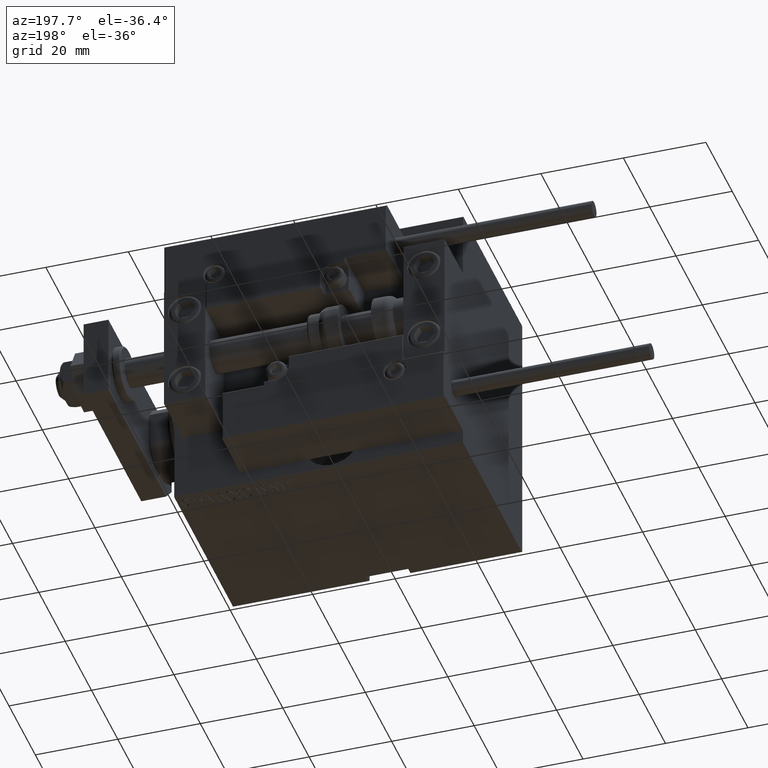
[diagram: clean part render]
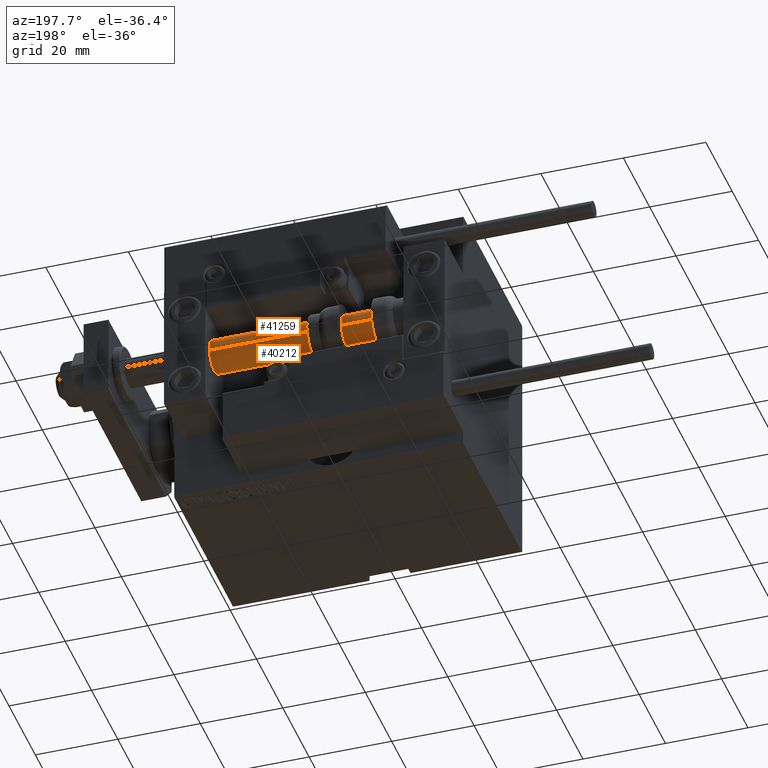
[diagram: same view with one multi-face feature highlighted, each face labeled with its STEP entity id]
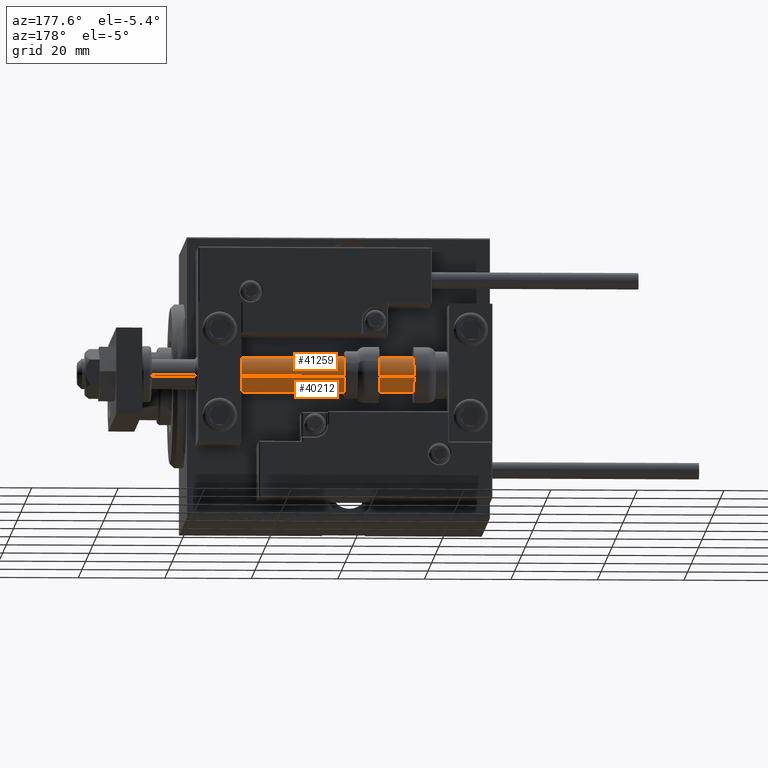
[diagram: same view with one multi-face feature highlighted, each face labeled with its STEP entity id]
A machine part, auxiliary view. The highlighted faces form ONE feature: a constant-radius fillet chain: 2 tangent blend faces with common blend radius 4 mm. The faces share edges in the B-rep.
A second angle (auxiliary view) of the same feature is appended — it is thin or edge-on in the first view.
Their STEP definitions:
[1] entity #40212 (Cylinder):
#13 = EDGE_CURVE ( 'NONE', #37298, #9705, #4983, .T. ) ;
#1396 = CARTESIAN_POINT ( 'NONE',  ( 0.000000000000000000, 0.000000000000000000, 2.000000000000029310 ) ) ;
#3138 = DIRECTION ( 'NONE',  ( -0.000000000000000000, -0.000000000000000000, -1.000000000000000000 ) ) ;
#3513 = CARTESIAN_POINT ( 'NONE',  ( 0.000000000000000000, 0.000000000000000000, 70.00000000000000000 ) ) ;
#3976 = VECTOR ( 'NONE', #34014, 1000.000000000000000 ) ;
#4983 = CIRCLE ( 'NONE', #6580, 4.000000000000000000 ) ;
#5680 = DIRECTION ( 'NONE',  ( -0.000000000000000000, -0.000000000000000000, 1.000000000000000000 ) ) ;
#6580 = AXIS2_PLACEMENT_3D ( 'NONE', #48083, #18069, #40729 ) ;
#7851 = ORIENTED_EDGE ( 'NONE', *, *, #18037, .T. ) ;
#9478 = DIRECTION ( 'NONE',  ( 1.000000000000000000, 0.000000000000000000, 0.000000000000000000 ) ) ;
#9705 = VERTEX_POINT ( 'NONE', #37234 ) ;
#13414 = ORIENTED_EDGE ( 'NONE', *, *, #34924, .F. ) ;
#17666 = CARTESIAN_POINT ( 'NONE',  ( 4.000000000000000000, 4.898587196589412829E-16, 2.000000000000029310 ) ) ;
#18037 = EDGE_CURVE ( 'NONE', #37298, #49916, #41470, .T. ) ;
#18069 = DIRECTION ( 'NONE',  ( 0.000000000000000000, 0.000000000000000000, 1.000000000000000000 ) ) ;
#18933 = DIRECTION ( 'NONE',  ( -0.000000000000000000, -0.000000000000000000, -1.000000000000000000 ) ) ;
#20427 = DIRECTION ( 'NONE',  ( -1.000000000000000000, 0.000000000000000000, 0.000000000000000000 ) ) ;
#20693 = CARTESIAN_POINT ( 'NONE',  ( -4.000000000000000000, 0.000000000000000000, 2.000000000000029310 ) ) ;
#23711 = FACE_OUTER_BOUND ( 'NONE', #49842, .T. ) ;
#27484 = EDGE_CURVE ( 'NONE', #49916, #31150, #34385, .T. ) ;
#27847 = ORIENTED_EDGE ( 'NONE', *, *, #13, .F. ) ;
#29748 = LINE ( 'NONE', #37540, #3976 ) ;
#30892 = CARTESIAN_POINT ( 'NONE',  ( 4.000000000000000000, 4.898587196589412829E-16, 70.00000000000000000 ) ) ;
#31150 = VERTEX_POINT ( 'NONE', #20693 ) ;
#31215 = ORIENTED_EDGE ( 'NONE', *, *, #27484, .T. ) ;
#34014 = DIRECTION ( 'NONE',  ( -0.000000000000000000, -0.000000000000000000, -1.000000000000000000 ) ) ;
#34385 = CIRCLE ( 'NONE', #42409, 4.000000000000000000 ) ;
#34924 = EDGE_CURVE ( 'NONE', #9705, #31150, #29748, .T. ) ;
#37234 = CARTESIAN_POINT ( 'NONE',  ( -4.000000000000000000, 0.000000000000000000, 70.00000000000000000 ) ) ;
#37298 = VERTEX_POINT ( 'NONE', #41287 ) ;
#37540 = CARTESIAN_POINT ( 'NONE',  ( -4.000000000000000000, 0.000000000000000000, 70.00000000000000000 ) ) ;
#38070 = CYLINDRICAL_SURFACE ( 'NONE', #41166, 4.000000000000000000 ) ;
#40212 = ADVANCED_FACE ( 'NONE', ( #23711 ), #38070, .T. ) ;
#40729 = DIRECTION ( 'NONE',  ( 1.000000000000000000, 0.000000000000000000, 0.000000000000000000 ) ) ;
#41166 = AXIS2_PLACEMENT_3D ( 'NONE', #3513, #18933, #20427 ) ;
#41287 = CARTESIAN_POINT ( 'NONE',  ( 4.000000000000000000, 4.898587196589412829E-16, 70.00000000000000000 ) ) ;
#41470 = LINE ( 'NONE', #30892, #49068 ) ;
#42409 = AXIS2_PLACEMENT_3D ( 'NONE', #1396, #5680, #9478 ) ;
#48083 = CARTESIAN_POINT ( 'NONE',  ( 0.000000000000000000, 0.000000000000000000, 70.00000000000000000 ) ) ;
#49068 = VECTOR ( 'NONE', #3138, 1000.000000000000000 ) ;
#49842 = EDGE_LOOP ( 'NONE', ( #27847, #7851, #31215, #13414 ) ) ;
#49916 = VERTEX_POINT ( 'NONE', #17666 ) ;
[2] entity #41259 (Cylinder):
#3138 = DIRECTION ( 'NONE',  ( -0.000000000000000000, -0.000000000000000000, -1.000000000000000000 ) ) ;
#3169 = FACE_OUTER_BOUND ( 'NONE', #13857, .T. ) ;
#3976 = VECTOR ( 'NONE', #34014, 1000.000000000000000 ) ;
#7965 = CYLINDRICAL_SURFACE ( 'NONE', #41198, 4.000000000000000000 ) ;
#9314 = AXIS2_PLACEMENT_3D ( 'NONE', #46424, #42109, #11878 ) ;
#9705 = VERTEX_POINT ( 'NONE', #37234 ) ;
#11159 = EDGE_CURVE ( 'NONE', #31150, #49916, #38335, .T. ) ;
#11878 = DIRECTION ( 'NONE',  ( 1.000000000000000000, 0.000000000000000000, 0.000000000000000000 ) ) ;
#13857 = EDGE_LOOP ( 'NONE', ( #23063, #19289, #22821, #39729 ) ) ;
#17666 = CARTESIAN_POINT ( 'NONE',  ( 4.000000000000000000, 4.898587196589412829E-16, 2.000000000000029310 ) ) ;
#18037 = EDGE_CURVE ( 'NONE', #37298, #49916, #41470, .T. ) ;
#18596 = DIRECTION ( 'NONE',  ( -1.000000000000000000, 0.000000000000000000, 0.000000000000000000 ) ) ;
#19087 = CARTESIAN_POINT ( 'NONE',  ( 0.000000000000000000, 0.000000000000000000, 70.00000000000000000 ) ) ;
#19289 = ORIENTED_EDGE ( 'NONE', *, *, #24417, .F. ) ;
#19874 = DIRECTION ( 'NONE',  ( 1.000000000000000000, 0.000000000000000000, 0.000000000000000000 ) ) ;
#20693 = CARTESIAN_POINT ( 'NONE',  ( -4.000000000000000000, 0.000000000000000000, 2.000000000000029310 ) ) ;
#21413 = CIRCLE ( 'NONE', #9314, 4.000000000000000000 ) ;
#22821 = ORIENTED_EDGE ( 'NONE', *, *, #34924, .T. ) ;
#23063 = ORIENTED_EDGE ( 'NONE', *, *, #18037, .F. ) ;
#24417 = EDGE_CURVE ( 'NONE', #9705, #37298, #21413, .T. ) ;
#29748 = LINE ( 'NONE', #37540, #3976 ) ;
#30892 = CARTESIAN_POINT ( 'NONE',  ( 4.000000000000000000, 4.898587196589412829E-16, 70.00000000000000000 ) ) ;
#30923 = DIRECTION ( 'NONE',  ( -0.000000000000000000, -0.000000000000000000, -1.000000000000000000 ) ) ;
#31150 = VERTEX_POINT ( 'NONE', #20693 ) ;
#34014 = DIRECTION ( 'NONE',  ( -0.000000000000000000, -0.000000000000000000, -1.000000000000000000 ) ) ;
#34924 = EDGE_CURVE ( 'NONE', #9705, #31150, #29748, .T. ) ;
#35245 = DIRECTION ( 'NONE',  ( -0.000000000000000000, -0.000000000000000000, 1.000000000000000000 ) ) ;
#37234 = CARTESIAN_POINT ( 'NONE',  ( -4.000000000000000000, 0.000000000000000000, 70.00000000000000000 ) ) ;
#37298 = VERTEX_POINT ( 'NONE', #41287 ) ;
#37540 = CARTESIAN_POINT ( 'NONE',  ( -4.000000000000000000, 0.000000000000000000, 70.00000000000000000 ) ) ;
#38335 = CIRCLE ( 'NONE', #41573, 4.000000000000000000 ) ;
#39729 = ORIENTED_EDGE ( 'NONE', *, *, #11159, .T. ) ;
#41198 = AXIS2_PLACEMENT_3D ( 'NONE', #19087, #30923, #18596 ) ;
#41259 = ADVANCED_FACE ( 'NONE', ( #3169 ), #7965, .T. ) ;
#41287 = CARTESIAN_POINT ( 'NONE',  ( 4.000000000000000000, 4.898587196589412829E-16, 70.00000000000000000 ) ) ;
#41470 = LINE ( 'NONE', #30892, #49068 ) ;
#41573 = AXIS2_PLACEMENT_3D ( 'NONE', #49638, #35245, #19874 ) ;
#42109 = DIRECTION ( 'NONE',  ( 0.000000000000000000, 0.000000000000000000, 1.000000000000000000 ) ) ;
#46424 = CARTESIAN_POINT ( 'NONE',  ( 0.000000000000000000, 0.000000000000000000, 70.00000000000000000 ) ) ;
#49068 = VECTOR ( 'NONE', #3138, 1000.000000000000000 ) ;
#49638 = CARTESIAN_POINT ( 'NONE',  ( 0.000000000000000000, 0.000000000000000000, 2.000000000000029310 ) ) ;
#49916 = VERTEX_POINT ( 'NONE', #17666 ) ;